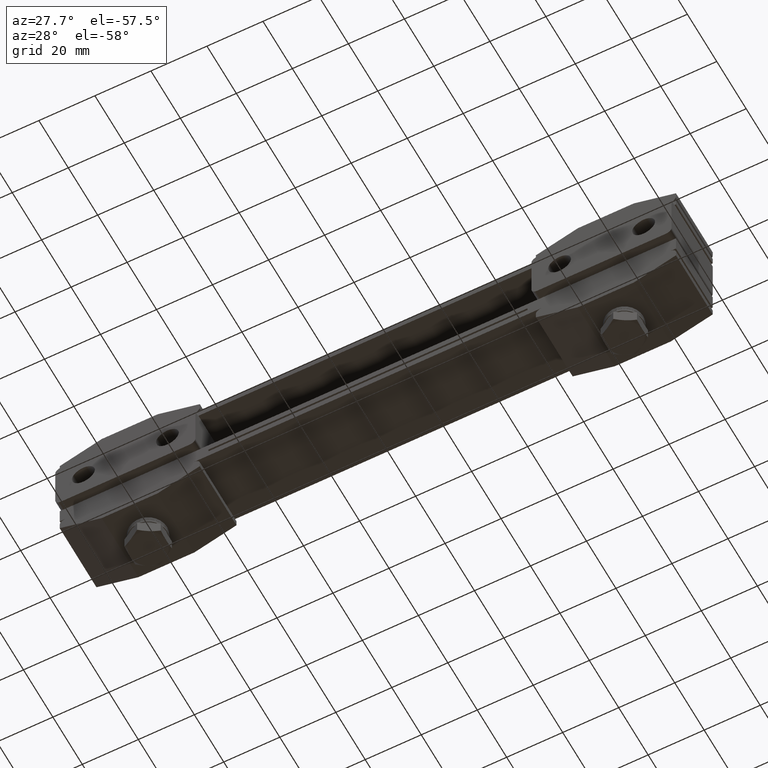
[diagram: clean part render]
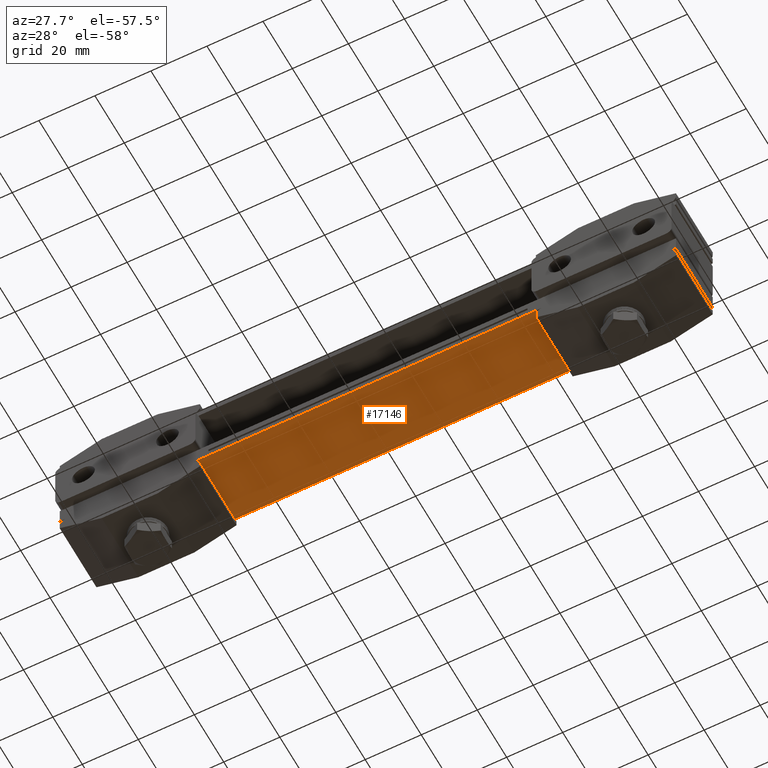
[diagram: same view with one face highlighted and labeled with its STEP entity id]
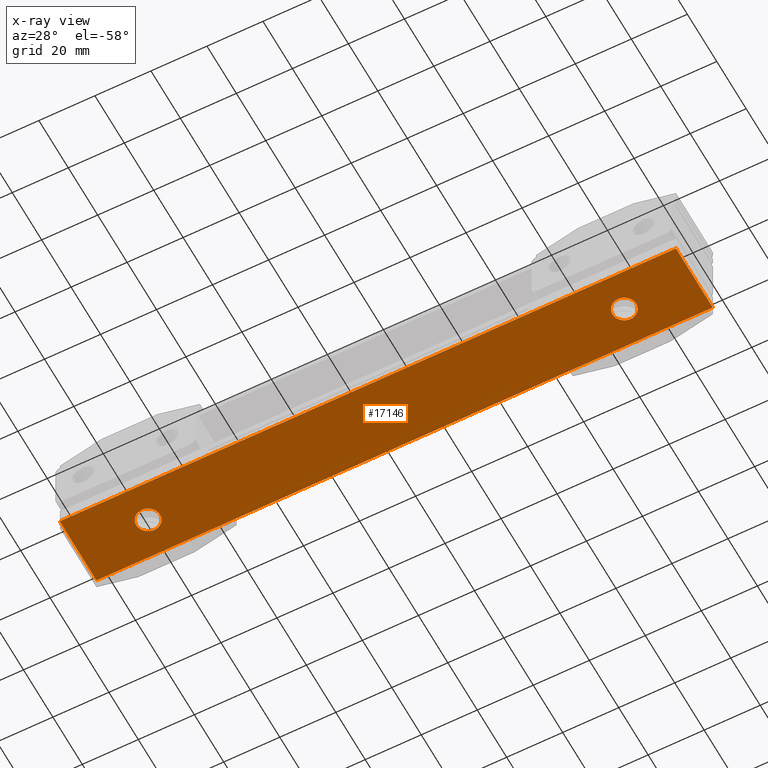
[diagram: x-ray of the same camera — body ghosted, the highlighted face saturated]
A machine part, auxiliary view. The second image highlights one B-rep face of the part: STEP entity #17146.
The next image is the same camera in x-ray: the body ghosted, the highlighted face saturated — about 0% of this face is hidden behind the body in this view.
In plain terms, the highlighted planar face has unit normal (0, 0, 1).
Its self-contained STEP definition (entity closure, byte-faithful):
#531 = EDGE_CURVE ( 'NONE', #9838, #13978, #18856, .T. ) ;
#1075 = CIRCLE ( 'NONE', #3295, 4.250000000000003600 ) ;
#1220 = CARTESIAN_POINT ( 'NONE',  ( 85.00000000000000000, 2.079641991417935000E-014, -3.500000000000000000 ) ) ;
#1268 = VECTOR ( 'NONE', #20118, 1000.000000000000000 ) ;
#1502 = PLANE ( 'NONE',  #9889 ) ;
#1630 = EDGE_CURVE ( 'NONE', #20373, #1759, #6594, .T. ) ;
#1759 = VERTEX_POINT ( 'NONE', #20900 ) ;
#2047 = FACE_BOUND ( 'NONE', #3152, .T. ) ;
#2050 = CIRCLE ( 'NONE', #19622, 4.250000000000003600 ) ;
#2171 = CARTESIAN_POINT ( 'NONE',  ( -110.0000000000000000, 12.50000000000000000, -3.500000000000000000 ) ) ;
#2489 = EDGE_CURVE ( 'NONE', #18062, #9838, #21985, .T. ) ;
#2498 = CARTESIAN_POINT ( 'NONE',  ( 110.0000000000000000, 12.50000000000000000, -3.500000000000000000 ) ) ;
#2561 = EDGE_LOOP ( 'NONE', ( #15216, #10987 ) ) ;
#2571 = FACE_BOUND ( 'NONE', #2561, .T. ) ;
#2848 = CARTESIAN_POINT ( 'NONE',  ( -85.00000000000000000, -2.188810080108705000E-017, -3.500000000000000000 ) ) ;
#2934 = VERTEX_POINT ( 'NONE', #12857 ) ;
#2940 = DIRECTION ( 'NONE',  ( 0.0000000000000000000, 0.0000000000000000000, -1.000000000000000000 ) ) ;
#3085 = EDGE_CURVE ( 'NONE', #1759, #20373, #21146, .T. ) ;
#3152 = EDGE_LOOP ( 'NONE', ( #10192, #17409 ) ) ;
#3295 = AXIS2_PLACEMENT_3D ( 'NONE', #14452, #7678, #10949 ) ;
#3762 = EDGE_CURVE ( 'NONE', #22096, #18062, #18908, .T. ) ;
#4459 = FACE_OUTER_BOUND ( 'NONE', #7234, .T. ) ;
#4473 = CARTESIAN_POINT ( 'NONE',  ( -110.0000000000000000, 12.50000000000000000, -3.500000000000000000 ) ) ;
#4498 = CARTESIAN_POINT ( 'NONE',  ( -110.0000000000000000, 12.50000000000000000, -3.500000000000000000 ) ) ;
#4535 = AXIS2_PLACEMENT_3D ( 'NONE', #1220, #2940, #13139 ) ;
#4949 = DIRECTION ( 'NONE',  ( 0.0000000000000000000, 0.0000000000000000000, 1.000000000000000000 ) ) ;
#5044 = EDGE_CURVE ( 'NONE', #6694, #2934, #1075, .T. ) ;
#5566 = EDGE_CURVE ( 'NONE', #13978, #22096, #20264, .T. ) ;
#6594 = CIRCLE ( 'NONE', #14758, 4.250000000000003600 ) ;
#6694 = VERTEX_POINT ( 'NONE', #19488 ) ;
#6725 = DIRECTION ( 'NONE',  ( -1.000000000000000000, 0.0000000000000000000, 0.0000000000000000000 ) ) ;
#7234 = EDGE_LOOP ( 'NONE', ( #9946, #17161, #15686, #20079 ) ) ;
#7526 = DIRECTION ( 'NONE',  ( 0.0000000000000000000, 1.000000000000000000, 0.0000000000000000000 ) ) ;
#7582 = CARTESIAN_POINT ( 'NONE',  ( -110.0000000000000000, -12.50000000000000000, -3.500000000000000000 ) ) ;
#7678 = DIRECTION ( 'NONE',  ( 0.0000000000000000000, 0.0000000000000000000, -1.000000000000000000 ) ) ;
#8122 = CARTESIAN_POINT ( 'NONE',  ( -110.0000000000000000, -12.50000000000000000, -3.500000000000000000 ) ) ;
#8543 = CARTESIAN_POINT ( 'NONE',  ( 85.00000000000000000, 2.079641991417935000E-014, -3.500000000000000000 ) ) ;
#9838 = VERTEX_POINT ( 'NONE', #7582 ) ;
#9845 = DIRECTION ( 'NONE',  ( 0.0000000000000000000, 0.0000000000000000000, -1.000000000000000000 ) ) ;
#9889 = AXIS2_PLACEMENT_3D ( 'NONE', #15125, #4949, #19152 ) ;
#9946 = ORIENTED_EDGE ( 'NONE', *, *, #2489, .F. ) ;
#10192 = ORIENTED_EDGE ( 'NONE', *, *, #3085, .F. ) ;
#10252 = DIRECTION ( 'NONE',  ( 0.0000000000000000000, 0.0000000000000000000, -1.000000000000000000 ) ) ;
#10949 = DIRECTION ( 'NONE',  ( -1.000000000000000000, 0.0000000000000000000, 0.0000000000000000000 ) ) ;
#10987 = ORIENTED_EDGE ( 'NONE', *, *, #17856, .F. ) ;
#11202 = VECTOR ( 'NONE', #7526, 1000.000000000000000 ) ;
#11399 = DIRECTION ( 'NONE',  ( -1.000000000000000000, 0.0000000000000000000, 0.0000000000000000000 ) ) ;
#12518 = VECTOR ( 'NONE', #11399, 1000.000000000000000 ) ;
#12857 = CARTESIAN_POINT ( 'NONE',  ( -80.75000000000000000, 4.985867888365377100E-016, -3.500000000000000000 ) ) ;
#13139 = DIRECTION ( 'NONE',  ( -1.000000000000000000, 0.0000000000000000000, 0.0000000000000000000 ) ) ;
#13978 = VERTEX_POINT ( 'NONE', #21066 ) ;
#14452 = CARTESIAN_POINT ( 'NONE',  ( -85.00000000000000000, -2.188810080108705000E-017, -3.500000000000000000 ) ) ;
#14758 = AXIS2_PLACEMENT_3D ( 'NONE', #8543, #10252, #6725 ) ;
#14775 = DIRECTION ( 'NONE',  ( -1.000000000000000000, 0.0000000000000000000, 0.0000000000000000000 ) ) ;
#15125 = CARTESIAN_POINT ( 'NONE',  ( -110.0000000000000000, -12.50000000000000000, -3.500000000000000000 ) ) ;
#15216 = ORIENTED_EDGE ( 'NONE', *, *, #5044, .F. ) ;
#15686 = ORIENTED_EDGE ( 'NONE', *, *, #5566, .F. ) ;
#16372 = DIRECTION ( 'NONE',  ( 0.0000000000000000000, -1.000000000000000000, 0.0000000000000000000 ) ) ;
#16592 = CARTESIAN_POINT ( 'NONE',  ( 110.0000000000000000, 12.50000000000000000, -3.500000000000000000 ) ) ;
#17146 = ADVANCED_FACE ( 'NONE', ( #2571, #2047, #4459 ), #1502, .F. ) ;
#17161 = ORIENTED_EDGE ( 'NONE', *, *, #3762, .F. ) ;
#17409 = ORIENTED_EDGE ( 'NONE', *, *, #1630, .F. ) ;
#17443 = VECTOR ( 'NONE', #16372, 1000.000000000000000 ) ;
#17856 = EDGE_CURVE ( 'NONE', #2934, #6694, #2050, .T. ) ;
#18062 = VERTEX_POINT ( 'NONE', #2171 ) ;
#18856 = LINE ( 'NONE', #8122, #1268 ) ;
#18908 = LINE ( 'NONE', #4473, #12518 ) ;
#19152 = DIRECTION ( 'NONE',  ( 1.000000000000000000, 0.0000000000000000000, 0.0000000000000000000 ) ) ;
#19488 = CARTESIAN_POINT ( 'NONE',  ( -89.25000000000001400, -2.188810080108705000E-017, -3.500000000000000000 ) ) ;
#19622 = AXIS2_PLACEMENT_3D ( 'NONE', #2848, #9845, #14775 ) ;
#20044 = CARTESIAN_POINT ( 'NONE',  ( 89.25000000000001400, 2.131689480381697400E-014, -3.500000000000000000 ) ) ;
#20079 = ORIENTED_EDGE ( 'NONE', *, *, #531, .F. ) ;
#20118 = DIRECTION ( 'NONE',  ( 1.000000000000000000, 0.0000000000000000000, 0.0000000000000000000 ) ) ;
#20264 = LINE ( 'NONE', #2498, #11202 ) ;
#20373 = VERTEX_POINT ( 'NONE', #20044 ) ;
#20900 = CARTESIAN_POINT ( 'NONE',  ( 80.75000000000000000, 2.079641991417935000E-014, -3.500000000000000000 ) ) ;
#21066 = CARTESIAN_POINT ( 'NONE',  ( 110.0000000000000000, -12.50000000000000000, -3.500000000000000000 ) ) ;
#21146 = CIRCLE ( 'NONE', #4535, 4.250000000000003600 ) ;
#21985 = LINE ( 'NONE', #4498, #17443 ) ;
#22096 = VERTEX_POINT ( 'NONE', #16592 ) ;